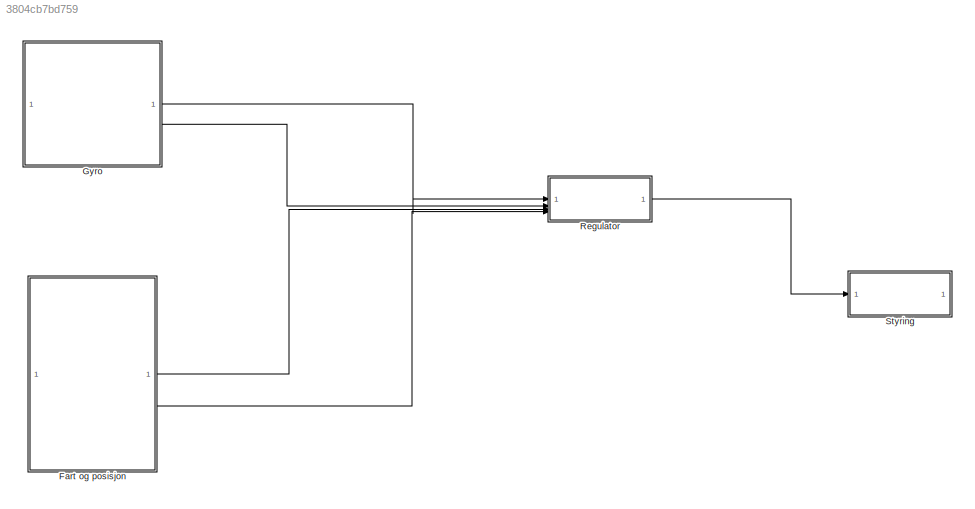
MODEL slx_3804cb7bd759
KIND model
CONFIG AbsTol = auto
CONFIG EnableMultiTasking = on
CONFIG FixedStep = auto
CONFIG MaxStep = auto
CONFIG MinStep = auto
CONFIG RelTol = 1e-3
CONFIG SampleTimeConstraint = Unconstrained
CONFIG SolverName = FixedStepAuto
CONFIG StartTime = 0.0
CONFIG StopTime = 10.0
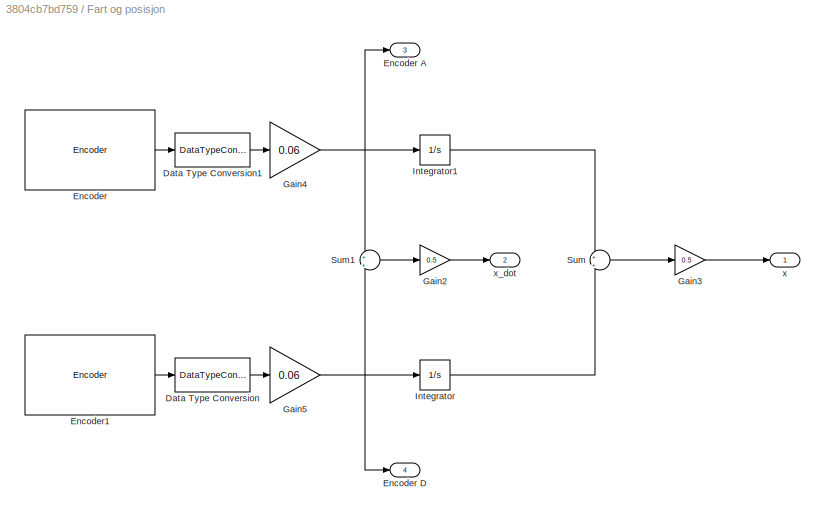
BLOCK [SubSystem] Fart og posisjon 
BLOCK [DataTypeConversion] Fart og posisjon /Data Type Conversion
  RndMeth = Floor
  SaturateOnIntegerOverflow = off
BLOCK [DataTypeConversion] Fart og posisjon /Data Type Conversion1
  RndMeth = Floor
  SaturateOnIntegerOverflow = off
BLOCK [Reference] Fart og posisjon /Encoder  REF=legoev3lib/Encoder
  SourceBlock = legoev3lib/Encoder
  SourceType = LEGO MINDSTORMS EV3 Encoder
BLOCK [Outport] Fart og posisjon /Encoder A
  Port = 3
BLOCK [Outport] Fart og posisjon /Encoder D
  Port = 4
BLOCK [Reference] Fart og posisjon /Encoder1  REF=legoev3lib/Encoder
  SourceBlock = legoev3lib/Encoder
  SourceType = LEGO MINDSTORMS EV3 Encoder
BLOCK [Gain] Fart og posisjon /Gain2
  Gain = 0.5
BLOCK [Gain] Fart og posisjon /Gain3
  Gain = 0.5
BLOCK [Gain] Fart og posisjon /Gain4
  Gain = 0.06
BLOCK [Gain] Fart og posisjon /Gain5
  Gain = 0.06
BLOCK [Integrator] Fart og posisjon /Integrator
BLOCK [Integrator] Fart og posisjon /Integrator1
BLOCK [Sum] Fart og posisjon /Sum
  Inputs = +|+
BLOCK [Sum] Fart og posisjon /Sum1
  Inputs = +|+
BLOCK [Outport] Fart og posisjon /x
BLOCK [Outport] Fart og posisjon /x_dot
  Port = 2
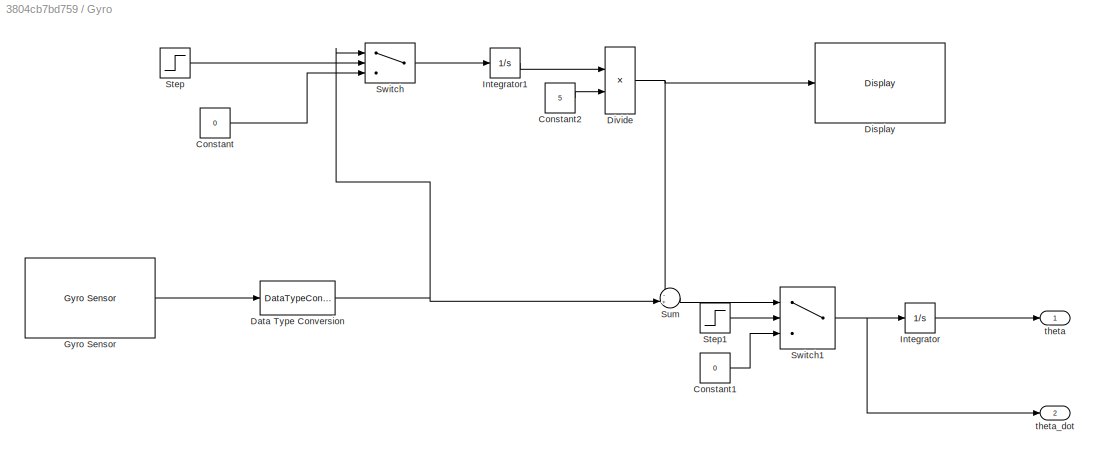
BLOCK [SubSystem] Gyro
BLOCK [Constant] Gyro/Constant
  Value = 0
BLOCK [Constant] Gyro/Constant1
  Value = 0
BLOCK [Constant] Gyro/Constant2
  Value = 5
BLOCK [DataTypeConversion] Gyro/Data Type Conversion
  RndMeth = Floor
  SaturateOnIntegerOverflow = off
BLOCK [Reference] Gyro/Display  REF=legoev3lib/Display
  SourceBlock = legoev3lib/Display
  SourceType = LEGO MINDSTORMS EV3 Display
BLOCK [Product] Gyro/Divide
  Inputs = */
BLOCK [Reference] Gyro/Gyro Sensor  REF=legoev3lib/Gyro Sensor
  SourceBlock = legoev3lib/Gyro Sensor
  SourceType = LEGO MINDSTORMS EV3 Gyro Sensor
BLOCK [Integrator] Gyro/Integrator
BLOCK [Integrator] Gyro/Integrator1
BLOCK [Step] Gyro/Step
  After = 0
  Before = 1
  SampleTime = 0
  Time = 5
BLOCK [Step] Gyro/Step1
  SampleTime = 0
  Time = 5
BLOCK [Sum] Gyro/Sum
  Inputs = -+|
BLOCK [Switch] Gyro/Switch
  Criteria = u2 > Threshold
  InputSameDT = off
  SaturateOnIntegerOverflow = off
BLOCK [Switch] Gyro/Switch1
  Criteria = u2 > Threshold
  InputSameDT = off
  SaturateOnIntegerOverflow = off
BLOCK [Outport] Gyro/theta
BLOCK [Outport] Gyro/theta_dot
  Port = 2
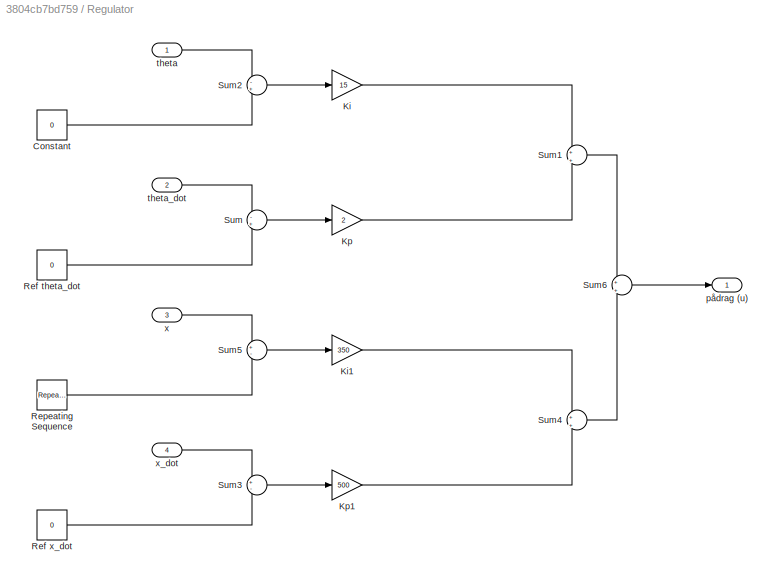
BLOCK [SubSystem] Regulator
BLOCK [Inport] Regulator/ x_dot
  Port = 4
BLOCK [Constant] Regulator/Constant
  Value = 0
BLOCK [Gain] Regulator/Ki
  Gain = 15
BLOCK [Gain] Regulator/Ki1
  Gain = 350
BLOCK [Gain] Regulator/Kp
  Gain = 2
BLOCK [Gain] Regulator/Kp1
  Gain = 500
BLOCK [Constant] Regulator/Ref theta_dot
  Value = 0
BLOCK [Constant] Regulator/Ref x_dot
  Value = 0
BLOCK [Reference] Regulator/Repeating Sequence  REF=simulink/Sources/Repeating
Sequence
  SourceBlock = simulink/Sources/Repeating\nSequence
  SourceType = Repeating table
BLOCK [Sum] Regulator/Sum
  Inputs = -+
BLOCK [Sum] Regulator/Sum1
  Inputs = +|+
BLOCK [Sum] Regulator/Sum2
  Inputs = -+
BLOCK [Sum] Regulator/Sum3
  Inputs = +-
BLOCK [Sum] Regulator/Sum4
  Inputs = +|+
BLOCK [Sum] Regulator/Sum5
  Inputs = +-
BLOCK [Sum] Regulator/Sum6
  Inputs = +|+
BLOCK [Outport] Regulator/pådrag (u)
BLOCK [Inport] Regulator/theta
BLOCK [Inport] Regulator/theta_dot
  Port = 2
BLOCK [Inport] Regulator/x
  Port = 3
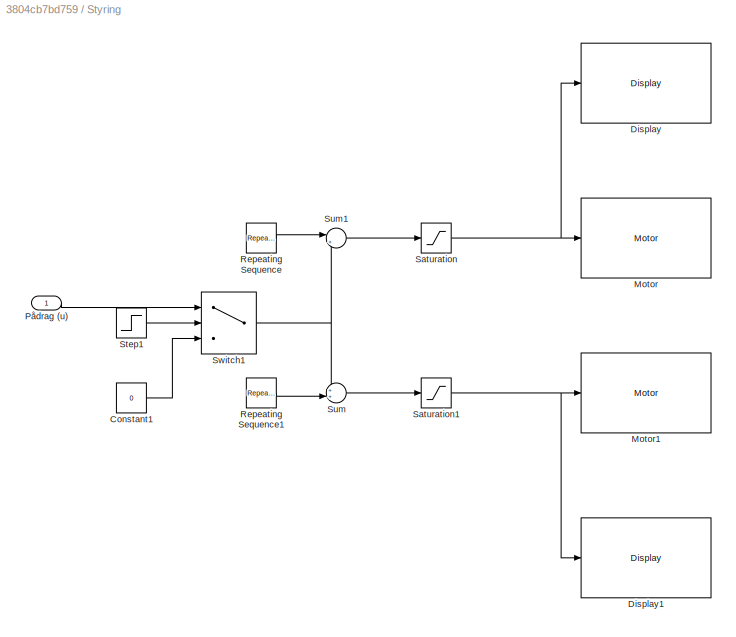
BLOCK [SubSystem] Styring
BLOCK [Constant] Styring/Constant1
  Value = 0
BLOCK [Reference] Styring/Display  REF=legoev3lib/Display
  SourceBlock = legoev3lib/Display
  SourceType = LEGO MINDSTORMS EV3 Display
BLOCK [Reference] Styring/Display1  REF=legoev3lib/Display
  SourceBlock = legoev3lib/Display
  SourceType = LEGO MINDSTORMS EV3 Display
BLOCK [Reference] Styring/Motor  REF=legoev3lib/Motor
  SourceBlock = legoev3lib/Motor
  SourceType = LEGO MINDSTORMS EV3 Motor
BLOCK [Reference] Styring/Motor1  REF=legoev3lib/Motor
  SourceBlock = legoev3lib/Motor
  SourceType = LEGO MINDSTORMS EV3 Motor
BLOCK [Inport] Styring/Pådrag (u)
BLOCK [Reference] Styring/Repeating Sequence  REF=simulink/Sources/Repeating
Sequence
  SourceBlock = simulink/Sources/Repeating\nSequence
  SourceType = Repeating table
BLOCK [Reference] Styring/Repeating Sequence1  REF=simulink/Sources/Repeating
Sequence
  SourceBlock = simulink/Sources/Repeating\nSequence
  SourceType = Repeating table
BLOCK [Saturate] Styring/Saturation
  LowerLimit = -100
  UpperLimit = 100
BLOCK [Saturate] Styring/Saturation1
  LowerLimit = -100
  UpperLimit = 100
BLOCK [Step] Styring/Step1
  SampleTime = 0
  Time = 5
BLOCK [Sum] Styring/Sum
  Inputs = ++|
BLOCK [Sum] Styring/Sum1
  Inputs = |++
BLOCK [Switch] Styring/Switch1
  Criteria = u2 > Threshold
  InputSameDT = off
  SaturateOnIntegerOverflow = off
LINE Fart og posisjon /Data Type Conversion1:1 -> Fart og posisjon /Gain4:1
LINE Fart og posisjon /Data Type Conversion:1 -> Fart og posisjon /Gain5:1
LINE Fart og posisjon /Encoder1:1 -> Fart og posisjon /Data Type Conversion:1
LINE Fart og posisjon /Encoder:1 -> Fart og posisjon /Data Type Conversion1:1
LINE Fart og posisjon /Gain2:1 -> Fart og posisjon /x_dot:1
LINE Fart og posisjon /Gain3:1 -> Fart og posisjon /x:1
NET Fart og posisjon /Gain4:1 -> Fart og posisjon /Encoder A:1, Fart og posisjon /Integrator1:1, Fart og posisjon /Sum1:1
NET Fart og posisjon /Gain5:1 -> Fart og posisjon /Encoder D:1, Fart og posisjon /Integrator:1, Fart og posisjon /Sum1:2
LINE Fart og posisjon /Integrator1:1 -> Fart og posisjon /Sum:1
LINE Fart og posisjon /Integrator:1 -> Fart og posisjon /Sum:2
LINE Fart og posisjon /Sum1:1 -> Fart og posisjon /Gain2:1
LINE Fart og posisjon /Sum:1 -> Fart og posisjon /Gain3:1
LINE Fart og posisjon :1 -> Regulator:3
LINE Fart og posisjon :2 -> Regulator:4
LINE Gyro/Constant1:1 -> Gyro/Switch1:3
LINE Gyro/Constant2:1 -> Gyro/Divide:2
LINE Gyro/Constant:1 -> Gyro/Switch:3
NET Gyro/Data Type Conversion:1 -> Gyro/Sum:2, Gyro/Switch:1
NET Gyro/Divide:1 -> Gyro/Display:1, Gyro/Sum:1
LINE Gyro/Gyro Sensor:1 -> Gyro/Data Type Conversion:1
LINE Gyro/Integrator1:1 -> Gyro/Divide:1
LINE Gyro/Integrator:1 -> Gyro/theta:1
LINE Gyro/Step1:1 -> Gyro/Switch1:2
LINE Gyro/Step:1 -> Gyro/Switch:2
LINE Gyro/Sum:1 -> Gyro/Switch1:1
NET Gyro/Switch1:1 -> Gyro/Integrator:1, Gyro/theta_dot:1
LINE Gyro/Switch:1 -> Gyro/Integrator1:1
LINE Gyro:1 -> Regulator:1
LINE Gyro:2 -> Regulator:2
LINE Regulator/ x_dot:1 -> Regulator/Sum3:1
LINE Regulator/Constant:1 -> Regulator/Sum2:2
LINE Regulator/Ki1:1 -> Regulator/Sum4:1
LINE Regulator/Ki:1 -> Regulator/Sum1:1
LINE Regulator/Kp1:1 -> Regulator/Sum4:2
LINE Regulator/Kp:1 -> Regulator/Sum1:2
LINE Regulator/Ref theta_dot:1 -> Regulator/Sum:2
LINE Regulator/Ref x_dot:1 -> Regulator/Sum3:2
LINE Regulator/Repeating Sequence:1 -> Regulator/Sum5:2
LINE Regulator/Sum1:1 -> Regulator/Sum6:1
LINE Regulator/Sum2:1 -> Regulator/Ki:1
LINE Regulator/Sum3:1 -> Regulator/Kp1:1
LINE Regulator/Sum4:1 -> Regulator/Sum6:2
LINE Regulator/Sum5:1 -> Regulator/Ki1:1
LINE Regulator/Sum6:1 -> Regulator/pådrag (u):1
LINE Regulator/Sum:1 -> Regulator/Kp:1
LINE Regulator/theta:1 -> Regulator/Sum2:1
LINE Regulator/theta_dot:1 -> Regulator/Sum:1
LINE Regulator/x:1 -> Regulator/Sum5:1
LINE Regulator:1 -> Styring:1
LINE Styring/Constant1:1 -> Styring/Switch1:3
LINE Styring/Pådrag (u):1 -> Styring/Switch1:1
LINE Styring/Repeating Sequence1:1 -> Styring/Sum:2
LINE Styring/Repeating Sequence:1 -> Styring/Sum1:1
NET Styring/Saturation1:1 -> Styring/Display1:1, Styring/Motor1:1
NET Styring/Saturation:1 -> Styring/Display:1, Styring/Motor:1
LINE Styring/Step1:1 -> Styring/Switch1:2
LINE Styring/Sum1:1 -> Styring/Saturation:1
LINE Styring/Sum:1 -> Styring/Saturation1:1
NET Styring/Switch1:1 -> Styring/Sum1:2, Styring/Sum:1
note: NET lines group one-source signal fan-out (src -> all destinations, sorted); 1:1 wires keep LINE
